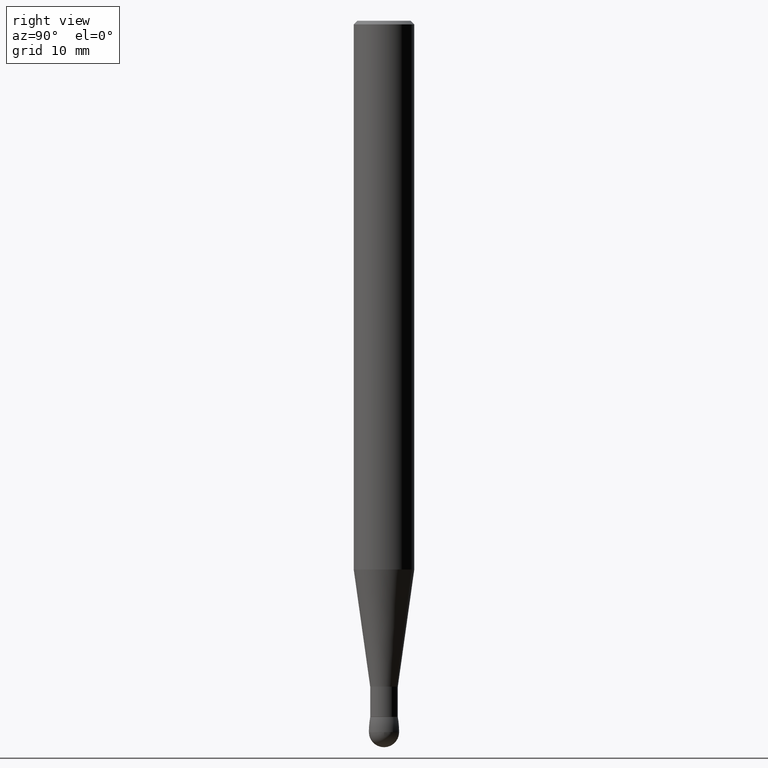
[diagram: clean part render]
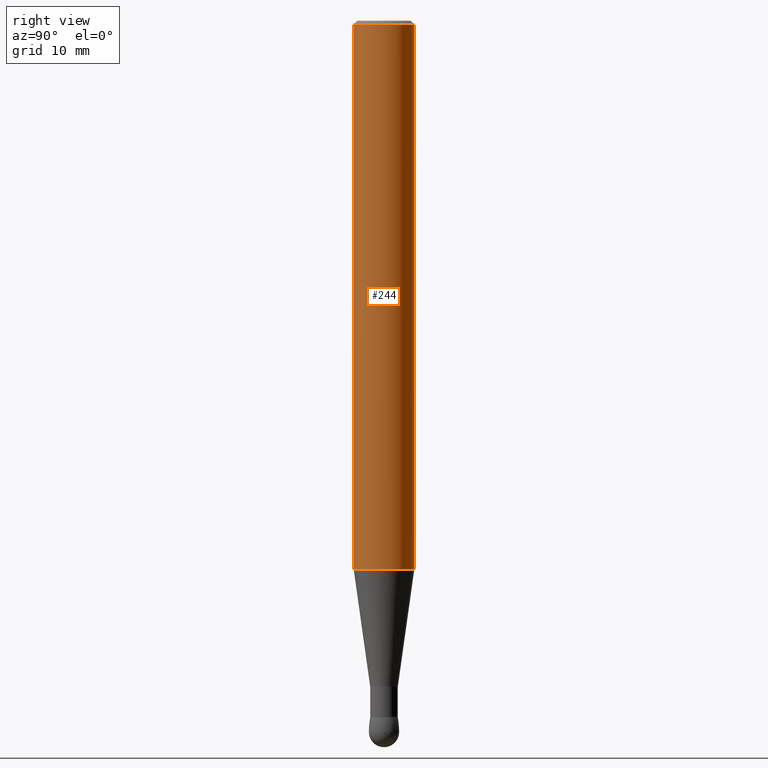
[diagram: same view with one face highlighted and labeled with its STEP entity id]
A machine part, right view. The second image highlights one B-rep face of the part: STEP entity #244.
In plain terms, the highlighted cylindrical surface (edge-blend (fillet) strip) has radius 3.175 mm, axis along (0, -0, -1).
Its self-contained STEP definition (entity closure, byte-faithful):
#9 = ORIENTED_EDGE ( 'NONE', *, *, #96, .F. ) ;
#13 = CARTESIAN_POINT ( 'NONE',  ( 3.664009176346352619E-31, -5.243228102131736927E-17, -0.01499999999999970281 ) ) ;
#14 = CARTESIAN_POINT ( 'NONE',  ( 8.881784197001776916E-16, 0.1249999999999917011, -2.266154858877881928 ) ) ;
#18 = CIRCLE ( 'NONE', #356, 0.1249999999999996531 ) ;
#50 = EDGE_CURVE ( 'NONE', #136, #331, #451, .T. ) ;
#60 = CARTESIAN_POINT ( 'NONE',  ( -8.728703347107258506E-16, -0.1250000000000076050, -2.266154858877880596 ) ) ;
#70 = DIRECTION ( 'NONE',  ( 2.442672784230950021E-29, -3.495485401421227157E-15, -1.000000000000000000 ) ) ;
#92 = DIRECTION ( 'NONE',  ( 2.442672784230950021E-29, -3.495485401421227157E-15, -1.000000000000000000 ) ) ;
#96 = EDGE_CURVE ( 'NONE', #452, #425, #18, .T. ) ;
#114 = FACE_OUTER_BOUND ( 'NONE', #240, .T. ) ;
#122 = DIRECTION ( 'NONE',  ( 6.982962677686265922E-15, 1.000000000000000000, -4.370956789862832982E-15 ) ) ;
#136 = VERTEX_POINT ( 'NONE', #190 ) ;
#143 = CARTESIAN_POINT ( 'NONE',  ( -8.575622497214381912E-16, -0.1249999999999996392, -0.01499999999999926566 ) ) ;
#153 = DIRECTION ( 'NONE',  ( 2.442672784230950021E-29, -3.495485401421227157E-15, -1.000000000000000000 ) ) ;
#172 = ORIENTED_EDGE ( 'NONE', *, *, #397, .F. ) ;
#173 = LINE ( 'NONE', #440, #418 ) ;
#184 = ORIENTED_EDGE ( 'NONE', *, *, #315, .T. ) ;
#185 = CYLINDRICAL_SURFACE ( 'NONE', #401, 0.1249999999999996253 ) ;
#190 = CARTESIAN_POINT ( 'NONE',  ( 8.728703347107806764E-16, 0.1249999999999995420, -0.01500000000000014169 ) ) ;
#192 = DIRECTION ( 'NONE',  ( 6.982962677686265133E-15, 1.000000000000000000, -3.500180241882349094E-15 ) ) ;
#208 = VECTOR ( 'NONE', #153, 39.37007874015748143 ) ;
#240 = EDGE_LOOP ( 'NONE', ( #350, #184, #9, #172 ) ) ;
#244 = ADVANCED_FACE ( 'NONE', ( #114 ), #185, .T. ) ;
#287 = AXIS2_PLACEMENT_3D ( 'NONE', #13, #376, #192 ) ;
#293 = CARTESIAN_POINT ( 'NONE',  ( 7.022684254663981800E-29, -1.004952052908603202E-14, -2.875000000000000444 ) ) ;
#303 = CARTESIAN_POINT ( 'NONE',  ( 8.728703347108507864E-16, 0.1249999999999895639, -2.875000000000000888 ) ) ;
#315 = EDGE_CURVE ( 'NONE', #331, #425, #173, .T. ) ;
#326 = DIRECTION ( 'NONE',  ( 6.982962677686265922E-15, 1.000000000000000000, -4.370956789862834560E-15 ) ) ;
#331 = VERTEX_POINT ( 'NONE', #143 ) ;
#350 = ORIENTED_EDGE ( 'NONE', *, *, #50, .T. ) ;
#356 = AXIS2_PLACEMENT_3D ( 'NONE', #426, #92, #122 ) ;
#376 = DIRECTION ( 'NONE',  ( 2.442672784230950021E-29, -3.495485401421227157E-15, -1.000000000000000000 ) ) ;
#397 = EDGE_CURVE ( 'NONE', #136, #452, #460, .T. ) ;
#399 = DIRECTION ( 'NONE',  ( 2.442672784230950021E-29, -3.495485401421227157E-15, -1.000000000000000000 ) ) ;
#401 = AXIS2_PLACEMENT_3D ( 'NONE', #293, #399, #326 ) ;
#418 = VECTOR ( 'NONE', #70, 39.37007874015748143 ) ;
#425 = VERTEX_POINT ( 'NONE', #60 ) ;
#426 = CARTESIAN_POINT ( 'NONE',  ( 5.535474798633730122E-29, -7.921311226567415248E-15, -2.266154858877881484 ) ) ;
#440 = CARTESIAN_POINT ( 'NONE',  ( -8.575622497213685743E-16, -0.1250000000000096867, -2.875000000000000000 ) ) ;
#451 = CIRCLE ( 'NONE', #287, 0.1249999999999995837 ) ;
#452 = VERTEX_POINT ( 'NONE', #14 ) ;
#460 = LINE ( 'NONE', #303, #208 ) ;